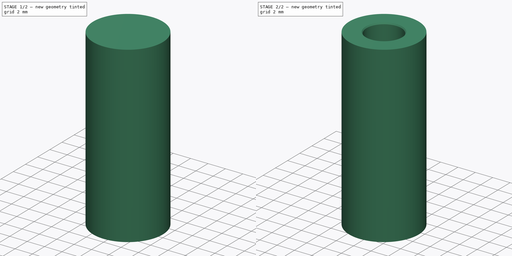
[diagram: build sequence overview — one tinted view per stage of 2, left to right]
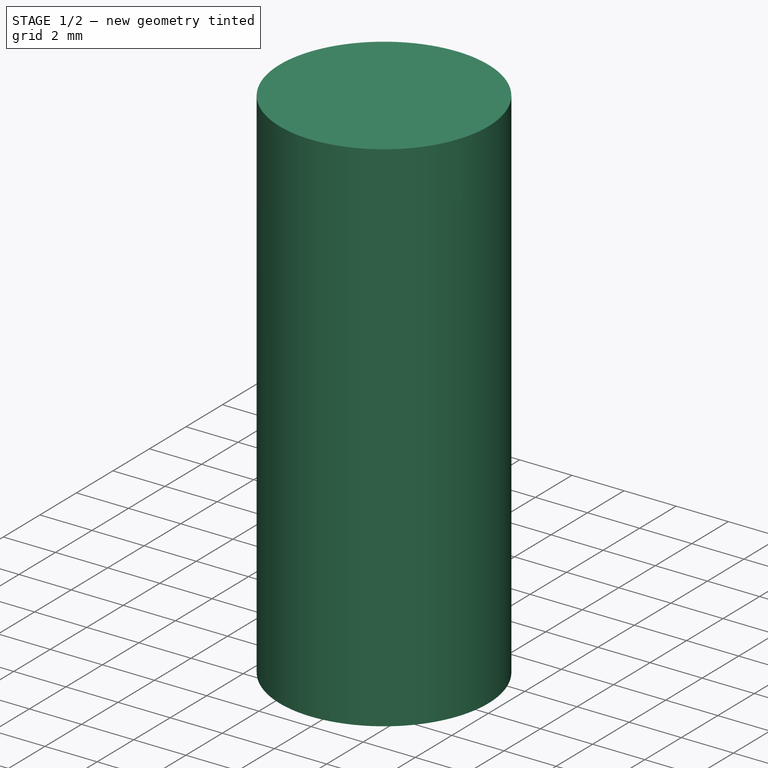
[diagram: stage 1 of 2 — iso view after this stage's code; geometry added in this stage tinted green]
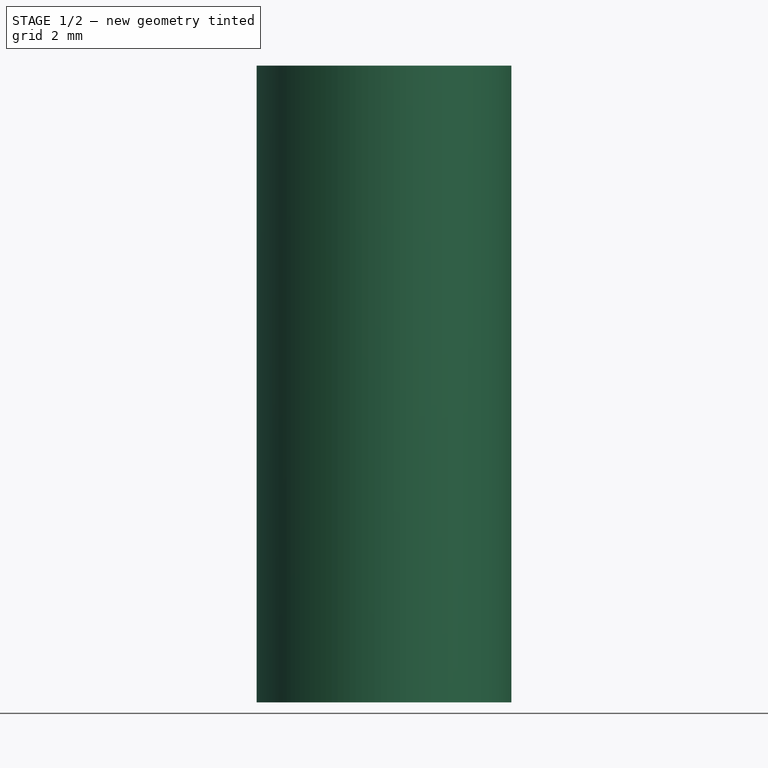
[diagram: stage 1 of 2 — front view after this stage's code; geometry added in this stage tinted green]
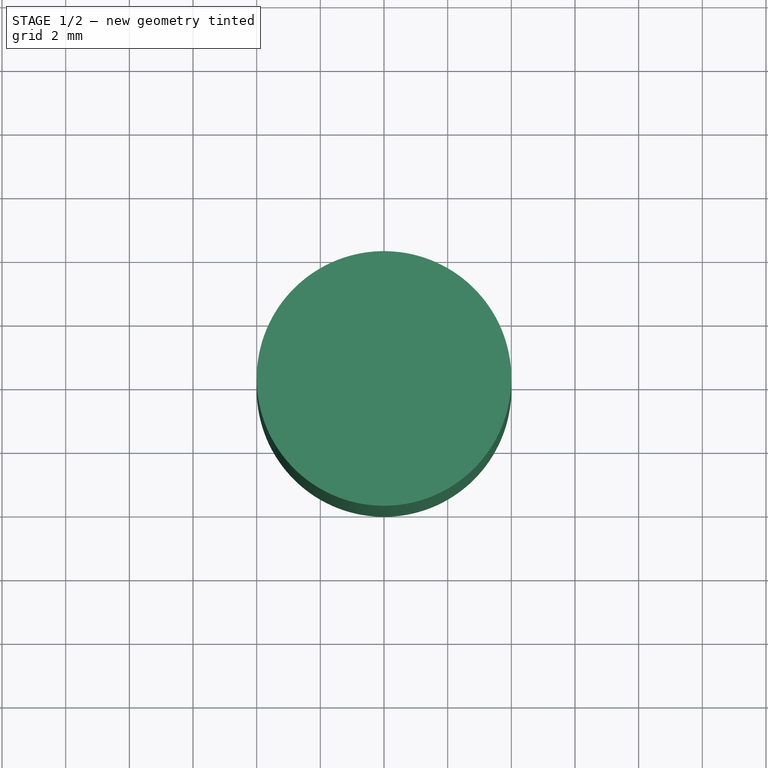
[diagram: stage 1 of 2 — top view after this stage's code; geometry added in this stage tinted green]
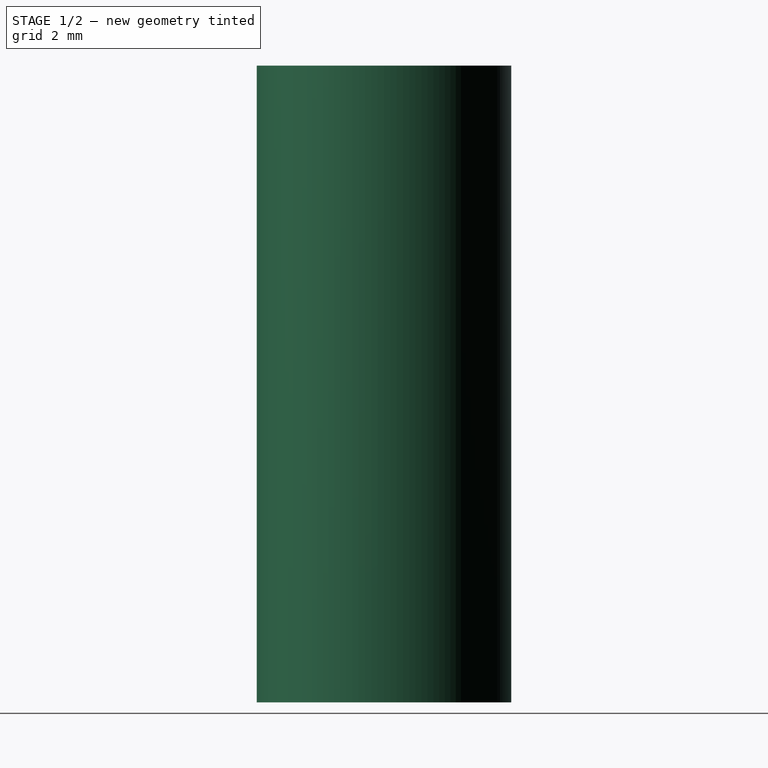
[diagram: stage 1 of 2 — right view after this stage's code; geometry added in this stage tinted green]
FCSTD DOCUMENT  (FreeCAD 0.20R29410 (Git))
Label: handle
License: All rights reserved
LicenseURL: http://en.wikipedia.org/wiki/All_rights_reserved
objects: Sketcher::SketchObject×2, PartDesign::FeatureBase×2, PartDesign::Body×2, Part::Mirroring×2, Part::Cylinder×1, PartDesign::Hole×1, PartDesign::Revolution×1
note: 13 computed .brp shape members not serialized (recipe doc carries the construction recipe); baked Part::Feature solids carry a one-line shape summary decoded from their .brp

FEATURE [Sketcher::SketchObject] Sketch
  FullyConstrained = false
  sketch-geometry (13):
    g0-g5: Circle x6 (B-spline internal-alignment scaffolding for g6; pole/knot coordinates omitted)
    g6: BSplineCurve PolesCount=6 KnotsCount=4 Degree=3 IsPeriodic=0
    g7-g10: GeomPoint x4 (B-spline internal-alignment scaffolding for g6; pole/knot coordinates omitted)
    g11: LineSegment StartX=5 StartY=0 StartZ=0 EndX=0 EndY=0 EndZ=0
    g12: LineSegment StartX=0 StartY=0 StartZ=0 EndX=0 EndY=55 EndZ=0
  constraints (14):
    c: Weight(g0) = 1
    c: PointOnObject(g6,g-1)
    c: Equal(g0, g1-g5) x5
    c: PointOnObject(g6,g-2)
    c: InternalAlignment(g0-g5 -> g6) x6
    c: InternalAlignment(g7-g10 -> g6) x4
    c: DistanceY(g-1,g6) = 55
    c: DistanceX(g-1,g6) = 5
    c: Horizontal(g4,g6)
    c: Vertical(g1,g6)
    c: Coincident(g11,g6)
    c: Coincident(g12,g11)
    c: Coincident(g12,g6)
    c: Vertical(g12)
FEATURE [Part::Cylinder] Cylinder
  Angle = 360
  AttacherType = Attacher::AttachEngine3D
  FirstAngle = 0
  Height = 20
  Placement = pos=(0,40,0) rot=(0,0,1;0rad)
  Radius = 4
  SecondAngle = 0
FEATURE [Sketcher::SketchObject] Sketch001
  FullyConstrained = true
  MapMode = 5
  Placement = pos=(0,40,20) rot=(0,0,1;0rad)
  Support = -> [Cylinder]
  sketch-geometry (1):
    g0: Circle CenterX=0 CenterY=0 CenterZ=0 NormalX=0 NormalY=0 NormalZ=1 AngleXU=0 Radius=2
  constraints (2):
    c: Coincident(g0,g-1)
    c: Diameter(g0) = 4
FEATURE [PartDesign::FeatureBase] BaseFeature001
  BaseFeature = -> Cylinder
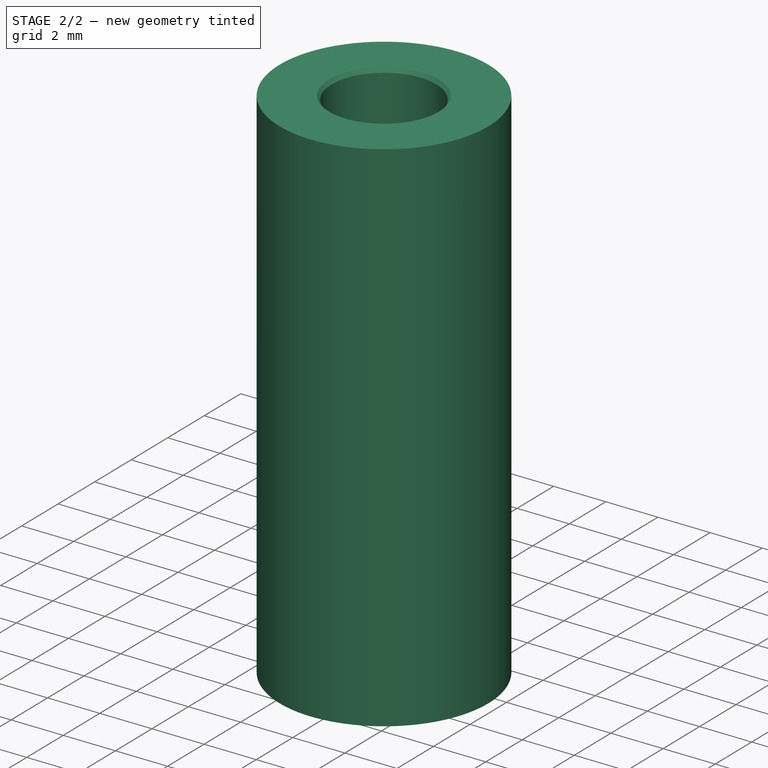
[diagram: stage 2 of 2 — iso view after this stage's code; geometry added in this stage tinted green]
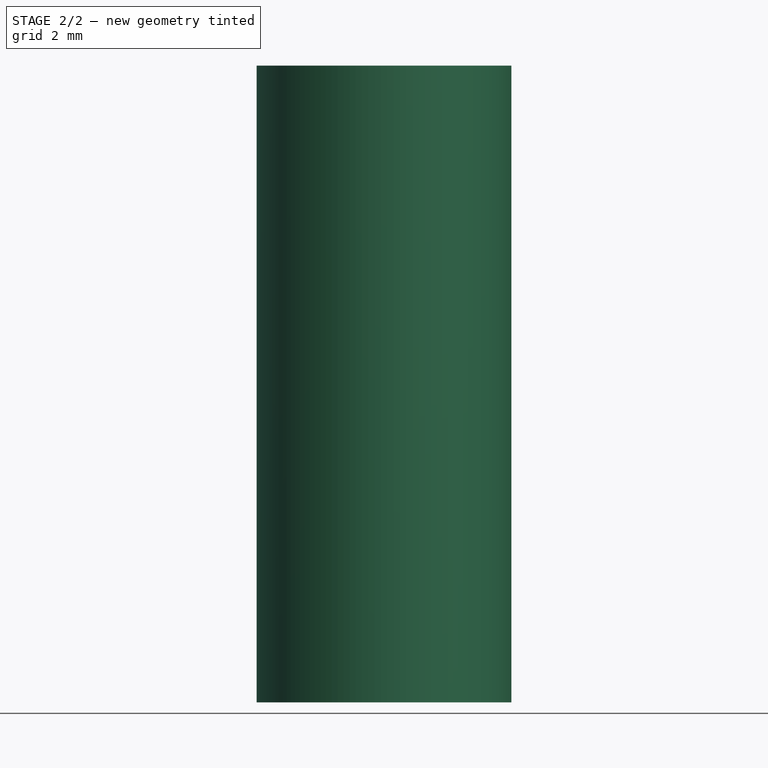
[diagram: stage 2 of 2 — front view after this stage's code; geometry added in this stage tinted green]
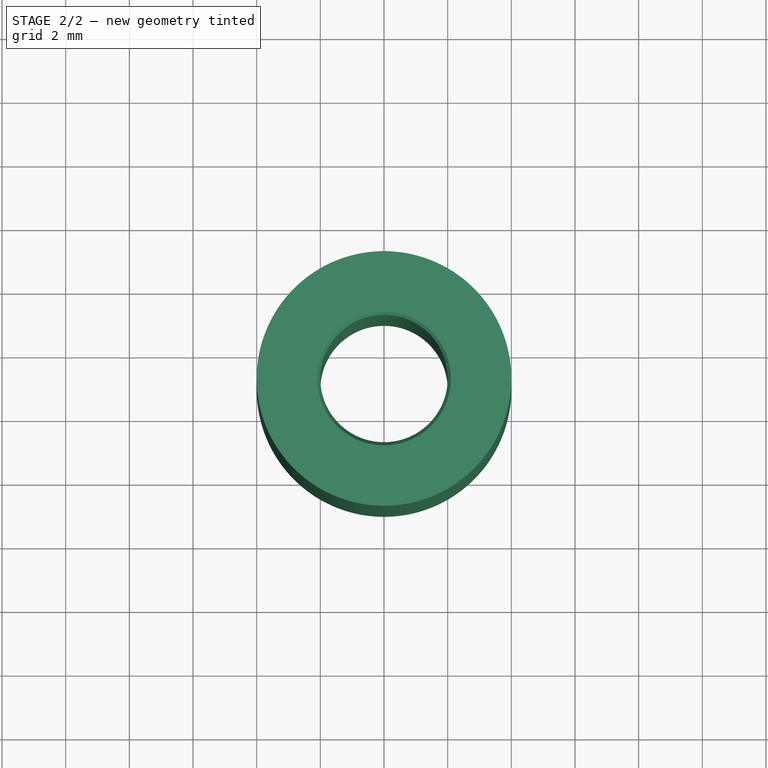
[diagram: stage 2 of 2 — top view after this stage's code; geometry added in this stage tinted green]
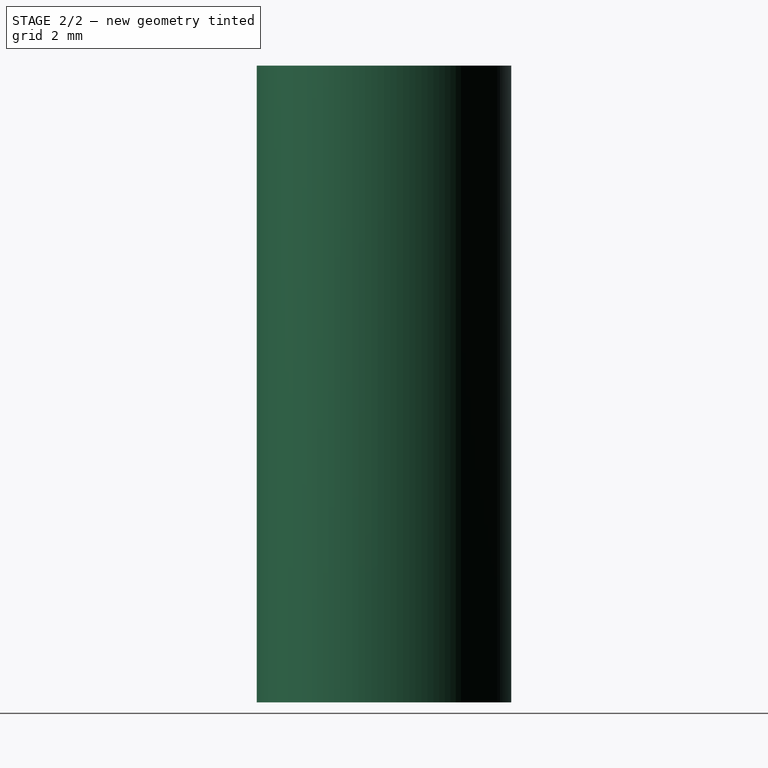
[diagram: stage 2 of 2 — right view after this stage's code; geometry added in this stage tinted green]
FEATURE [PartDesign::Hole] Hole
  BaseFeature = -> BaseFeature001
  CustomThreadClearance = 0
  Depth = 25
  DepthType = 0
  Diameter = 4
  DrillForDepth = false
  DrillPoint = 1
  DrillPointAngle = 120
  HoleCutCountersinkAngle = 69
  HoleCutCustomValues = false
  HoleCutDepth = 1
  HoleCutDiameter = 4.2
  HoleCutType = 2
  ModelThread = false
  Profile = -> BaseFeature001 [Face3]
  Tapered = false
  TaperedAngle = 90
  ThreadClass = 0
  ThreadDepth = 25
  ThreadDepthType = 0
  ThreadDirection = 0
  ThreadFit = 1
  ThreadSize = 0
  ThreadType = 0
  Threaded = false
  UseCustomThreadClearance = false
FEATURE [PartDesign::Body] Body001  label="pole1"
  BaseFeature = -> Cylinder
  Group = -> [BaseFeature001,Hole]
  Origin = -> Origin001
  Placement = pos=(0,45,0) rot=(0,0,1;0rad)
  Tip = -> Hole
FEATURE [Part::Mirroring] Part__Mirroring001  label="pole1 (Mirror #2)"
  Base = (0,0,0)
  Normal = (0,1,0)
  Source = -> Body001
FEATURE [PartDesign::Body] Body  label="grip"
  BaseFeature = -> Part__Mirroring
  Group = -> [BaseFeature,Sketch,Revolution]
  Origin = -> Origin
  Tip = -> Revolution
FEATURE [PartDesign::Revolution] Revolution
  Angle = 360
  Axis = (0,1,0)
  Base = (0,0,0)
  BaseFeature = -> BaseFeature
  Profile = -> Sketch
  ReferenceAxis = -> Sketch [V_Axis]
  Reversed = true
FEATURE [Part::Mirroring] Part__Mirroring  label="Revolution (Mirror #1)"
  Base = (0,0,0)
  Normal = (0,1,0)
  Source = -> Revolution
FEATURE [PartDesign::FeatureBase] BaseFeature
  BaseFeature = -> Part__Mirroring
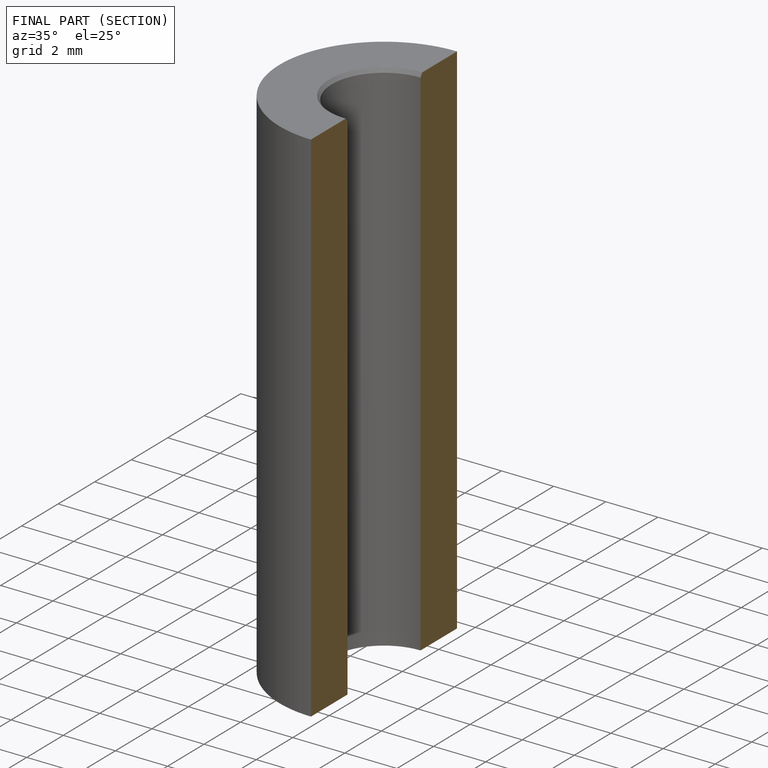
[diagram: finished part — half-section view (interior)]
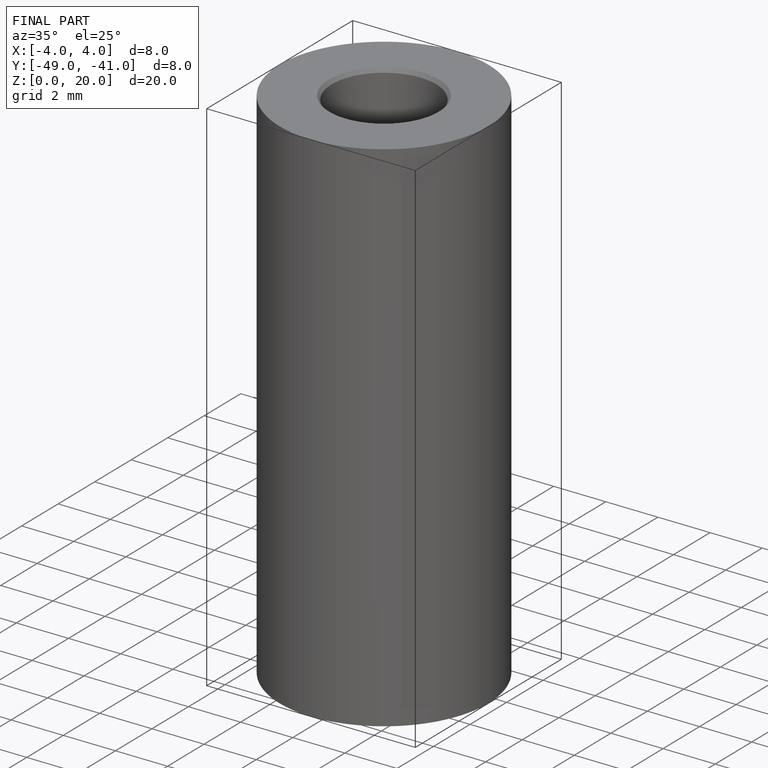
[diagram: finished part — iso view with bounding-box wireframe]
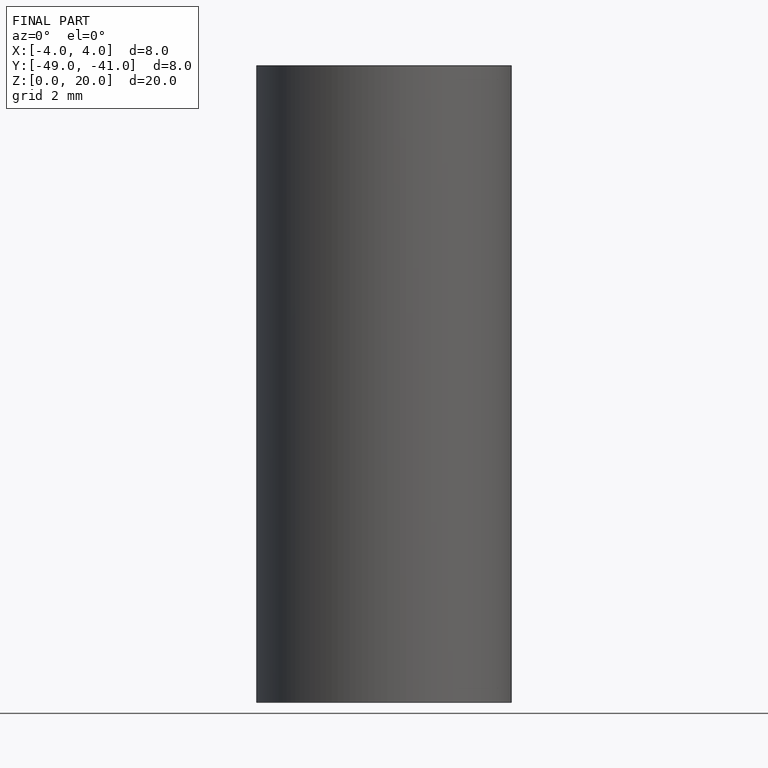
[diagram: finished part — front view with bounding-box wireframe]
